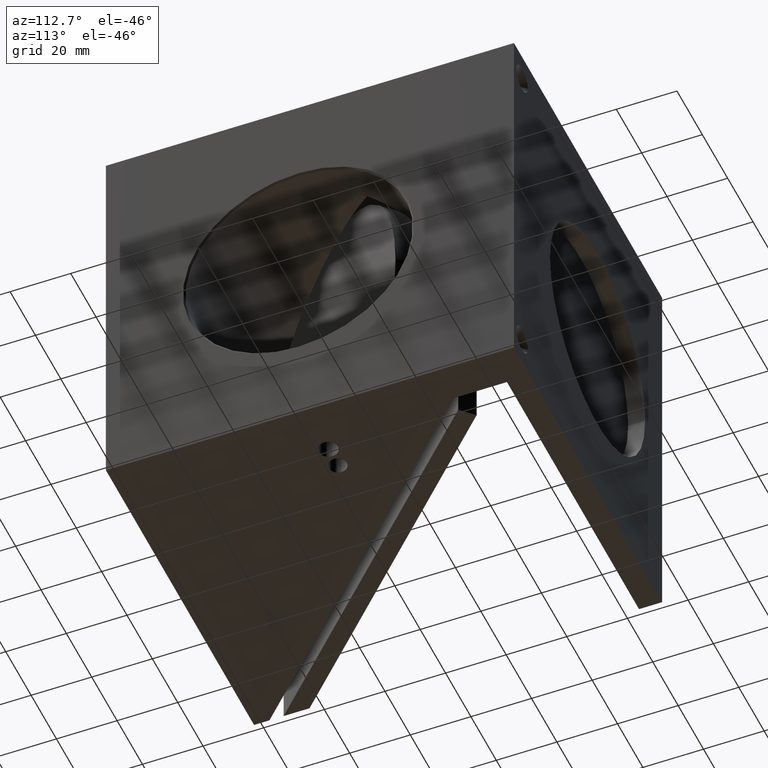
[diagram: clean part render]
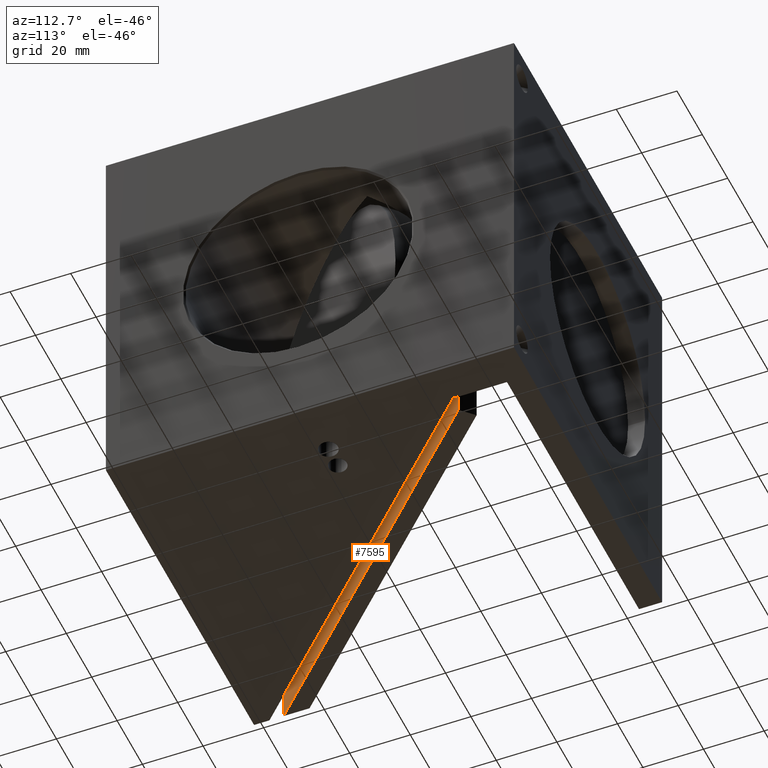
[diagram: same view with one face highlighted and labeled with its STEP entity id]
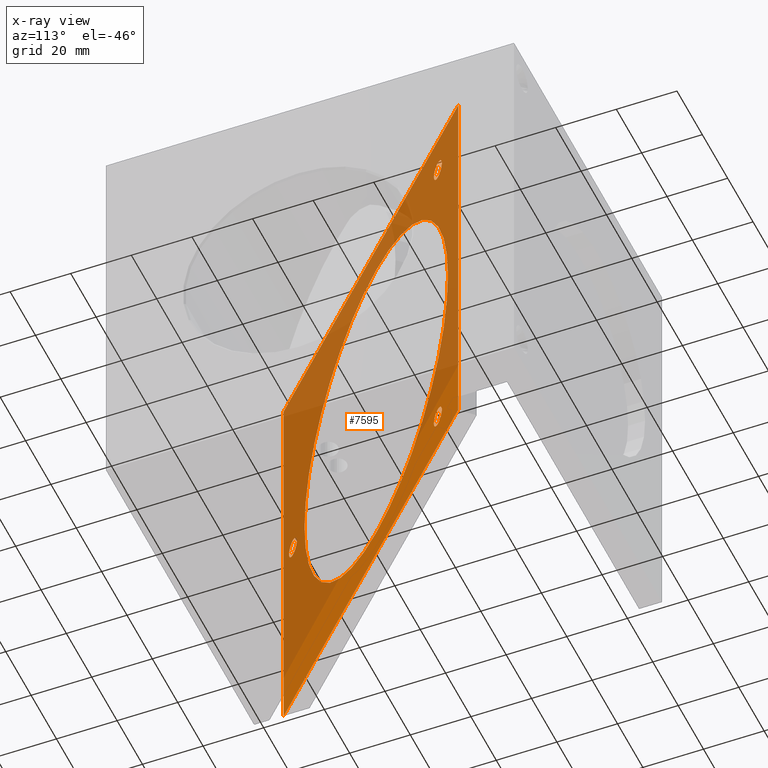
[diagram: x-ray of the same camera — body ghosted, the highlighted face saturated]
A machine part, auxiliary view. The second image highlights one B-rep face of the part: STEP entity #7595.
The next image is the same camera in x-ray: the body ghosted, the highlighted face saturated — about 74% of this face is hidden behind the body in this view.
In plain terms, the highlighted planar face has unit normal (0.7071, -0.7071, -0).
Its self-contained STEP definition (entity closure, byte-faithful):
#6214 = VERTEX_POINT ( 'NONE', #24185 ) ;
#6216 = EDGE_CURVE ( 'NONE', #6214, #6218, #24184, .T. ) ;
#6218 = VERTEX_POINT ( 'NONE', #24179 ) ;
#6273 = VERTEX_POINT ( 'NONE', #24305 ) ;
#6276 = EDGE_CURVE ( 'NONE', #6273, #6278, #24304, .T. ) ;
#6278 = VERTEX_POINT ( 'NONE', #24299 ) ;
#6302 = VERTEX_POINT ( 'NONE', #24308 ) ;
#6304 = EDGE_CURVE ( 'NONE', #6302, #6305, #24363, .T. ) ;
#6305 = VERTEX_POINT ( 'NONE', #24358 ) ;
#6325 = VERTEX_POINT ( 'NONE', #24373 ) ;
#6328 = EDGE_CURVE ( 'NONE', #6325, #6329, #24372, .T. ) ;
#6329 = VERTEX_POINT ( 'NONE', #24367 ) ;
#7496 = VERTEX_POINT ( 'NONE', #26300 ) ;
#7501 = EDGE_CURVE ( 'NONE', #7612, #7496, #26299, .T. ) ;
#7506 = EDGE_CURVE ( 'NONE', #7507, #7508, #26295, .T. ) ;
#7507 = VERTEX_POINT ( 'NONE', #26291 ) ;
#7508 = VERTEX_POINT ( 'NONE', #26351 ) ;
#7569 = ORIENTED_EDGE ( 'NONE', *, *, #7571, .F. ) ;
#7571 = EDGE_CURVE ( 'NONE', #6329, #6325, #26447, .T. ) ;
#7572 = ORIENTED_EDGE ( 'NONE', *, *, #6328, .F. ) ;
#7574 = EDGE_LOOP ( 'NONE', ( #7575, #7580 ) ) ;
#7575 = ORIENTED_EDGE ( 'NONE', *, *, #7578, .F. ) ;
#7578 = EDGE_CURVE ( 'NONE', #6305, #6302, #26442, .T. ) ;
#7580 = ORIENTED_EDGE ( 'NONE', *, *, #6304, .F. ) ;
#7582 = EDGE_LOOP ( 'NONE', ( #7583, #7586 ) ) ;
#7583 = ORIENTED_EDGE ( 'NONE', *, *, #7584, .F. ) ;
#7584 = EDGE_CURVE ( 'NONE', #6278, #6273, #26494, .T. ) ;
#7586 = ORIENTED_EDGE ( 'NONE', *, *, #6276, .F. ) ;
#7595 = ADVANCED_FACE ( 'NONE', ( #26522, #26521, #26520, #26519, #26518 ), #26501, .T. ) ;
#7597 = EDGE_LOOP ( 'NONE', ( #7598, #7600, #7601, #7602 ) ) ;
#7598 = ORIENTED_EDGE ( 'NONE', *, *, #7599, .F. ) ;
#7599 = EDGE_CURVE ( 'NONE', #7507, #7496, #26500, .T. ) ;
#7600 = ORIENTED_EDGE ( 'NONE', *, *, #7506, .T. ) ;
#7601 = ORIENTED_EDGE ( 'NONE', *, *, #7615, .T. ) ;
#7602 = ORIENTED_EDGE ( 'NONE', *, *, #7501, .T. ) ;
#7604 = EDGE_LOOP ( 'NONE', ( #7605, #7608 ) ) ;
#7605 = ORIENTED_EDGE ( 'NONE', *, *, #7607, .F. ) ;
#7607 = EDGE_CURVE ( 'NONE', #6218, #6214, #26553, .T. ) ;
#7608 = ORIENTED_EDGE ( 'NONE', *, *, #6216, .F. ) ;
#7609 = EDGE_LOOP ( 'NONE', ( #7569, #7572 ) ) ;
#7612 = VERTEX_POINT ( 'NONE', #26544 ) ;
#7615 = EDGE_CURVE ( 'NONE', #7508, #7612, #26542, .T. ) ;
#24179 = CARTESIAN_POINT ( 'NONE',  ( -0.6077082818109708100, 0.4554697870936628700, 2.749500000000000300 ) ) ;
#24180 = DIRECTION ( 'NONE',  ( 0.0000000000000000000, 0.0000000000000000000, 1.000000000000000000 ) ) ;
#24181 = DIRECTION ( 'NONE',  ( 0.7071067811865490200, -0.7071067811865461300, 7.582389110198108000E-017 ) ) ;
#24182 = CARTESIAN_POINT ( 'NONE',  ( -0.6077082818109707000, 0.4554697870936629800, 2.625000000000000400 ) ) ;
#24183 = AXIS2_PLACEMENT_3D ( 'NONE', #24182, #24181, #24180 ) ;
#24184 = CIRCLE ( 'NONE', #24183, 0.1244999999999997200 ) ;
#24185 = CARTESIAN_POINT ( 'NONE',  ( -0.6077082818109708100, 0.4554697870936628700, 2.500500000000000600 ) ) ;
#24299 = CARTESIAN_POINT ( 'NONE',  ( 1.251459659215662800, 2.314637728120305700, 4.889499999999999100 ) ) ;
#24300 = DIRECTION ( 'NONE',  ( 1.206380213585455200E-016, 1.206380213585455200E-016, 1.000000000000000000 ) ) ;
#24301 = DIRECTION ( 'NONE',  ( 0.7071067811865490200, -0.7071067811865461300, 7.582389110198108000E-017 ) ) ;
#24302 = CARTESIAN_POINT ( 'NONE',  ( 1.251459659215662800, 2.314637728120305200, 2.624999999999999600 ) ) ;
#24303 = AXIS2_PLACEMENT_3D ( 'NONE', #24302, #24301, #24300 ) ;
#24304 = CIRCLE ( 'NONE', #24303, 2.264500000000000000 ) ;
#24305 = CARTESIAN_POINT ( 'NONE',  ( 1.251459659215662200, 2.314637728120304300, 0.3604999999999996000 ) ) ;
#24308 = CARTESIAN_POINT ( 'NONE',  ( 2.627305242117476100, 3.690483311022126700, 0.3754999999999994500 ) ) ;
#24358 = CARTESIAN_POINT ( 'NONE',  ( 2.627305242117476100, 3.690483311022126700, 0.6244999999999991700 ) ) ;
#24359 = DIRECTION ( 'NONE',  ( 0.0000000000000000000, 0.0000000000000000000, 1.000000000000000000 ) ) ;
#24360 = DIRECTION ( 'NONE',  ( 0.7071067811865490200, -0.7071067811865461300, 7.582389110198108000E-017 ) ) ;
#24361 = CARTESIAN_POINT ( 'NONE',  ( 2.627305242117476100, 3.690483311022126700, 0.4999999999999993300 ) ) ;
#24362 = AXIS2_PLACEMENT_3D ( 'NONE', #24361, #24360, #24359 ) ;
#24363 = CIRCLE ( 'NONE', #24362, 0.1244999999999998600 ) ;
#24367 = CARTESIAN_POINT ( 'NONE',  ( 2.627305242117477800, 3.690483311022126700, 4.874499999999999400 ) ) ;
#24368 = DIRECTION ( 'NONE',  ( 0.0000000000000000000, 0.0000000000000000000, 1.000000000000000000 ) ) ;
#24369 = DIRECTION ( 'NONE',  ( 0.7071067811865490200, -0.7071067811865461300, 7.582389110198108000E-017 ) ) ;
#24370 = CARTESIAN_POINT ( 'NONE',  ( 2.627305242117477800, 3.690483311022126700, 4.749999999999999100 ) ) ;
#24371 = AXIS2_PLACEMENT_3D ( 'NONE', #24370, #24369, #24368 ) ;
#24372 = CIRCLE ( 'NONE', #24371, 0.1244999999999997200 ) ;
#24373 = CARTESIAN_POINT ( 'NONE',  ( 2.627305242117477800, 3.690483311022126700, 4.625499999999999700 ) ) ;
#26291 = CARTESIAN_POINT ( 'NONE',  ( -0.8165416096220781100, 0.2466364592825541800, 5.463695987328526400E-016 ) ) ;
#26292 = DIRECTION ( 'NONE',  ( 0.7071067811865458000, 0.7071067811865493500, -5.967389539223752300E-017 ) ) ;
#26293 = VECTOR ( 'NONE', #26292, 39.37007874015748100 ) ;
#26294 = CARTESIAN_POINT ( 'NONE',  ( -0.8822912799745500400, 0.1808867889300820600, 0.0000000000000000000 ) ) ;
#26295 = LINE ( 'NONE', #26294, #26293 ) ;
#26296 = DIRECTION ( 'NONE',  ( -0.7071067811865458000, -0.7071067811865493500, -3.777029913832295300E-017 ) ) ;
#26297 = VECTOR ( 'NONE', #26296, 39.37007874015748100 ) ;
#26298 = CARTESIAN_POINT ( 'NONE',  ( -0.8822912799745491500, 0.1808867889300825900, 5.250000000000000000 ) ) ;
#26299 = LINE ( 'NONE', #26298, #26297 ) ;
#26300 = CARTESIAN_POINT ( 'NONE',  ( -0.8165416096220775600, 0.2466364592825547300, 5.250000000000000000 ) ) ;
#26351 = CARTESIAN_POINT ( 'NONE',  ( 3.082456442138413500, 4.145634511043065900, -5.463695987328526400E-016 ) ) ;
#26438 = DIRECTION ( 'NONE',  ( 0.0000000000000000000, 0.0000000000000000000, 1.000000000000000000 ) ) ;
#26439 = DIRECTION ( 'NONE',  ( 0.7071067811865490200, -0.7071067811865461300, 7.582389110198108000E-017 ) ) ;
#26440 = CARTESIAN_POINT ( 'NONE',  ( 2.627305242117476100, 3.690483311022126700, 0.4999999999999993300 ) ) ;
#26441 = AXIS2_PLACEMENT_3D ( 'NONE', #26440, #26439, #26438 ) ;
#26442 = CIRCLE ( 'NONE', #26441, 0.1244999999999998600 ) ;
#26443 = DIRECTION ( 'NONE',  ( 0.0000000000000000000, 0.0000000000000000000, 1.000000000000000000 ) ) ;
#26444 = DIRECTION ( 'NONE',  ( 0.7071067811865490200, -0.7071067811865461300, 7.582389110198108000E-017 ) ) ;
#26445 = CARTESIAN_POINT ( 'NONE',  ( 2.627305242117477800, 3.690483311022126700, 4.749999999999999100 ) ) ;
#26446 = AXIS2_PLACEMENT_3D ( 'NONE', #26445, #26444, #26443 ) ;
#26447 = CIRCLE ( 'NONE', #26446, 0.1244999999999997200 ) ;
#26490 = DIRECTION ( 'NONE',  ( 1.206380213585455200E-016, 1.206380213585455200E-016, 1.000000000000000000 ) ) ;
#26491 = DIRECTION ( 'NONE',  ( 0.7071067811865490200, -0.7071067811865461300, 7.582389110198108000E-017 ) ) ;
#26492 = CARTESIAN_POINT ( 'NONE',  ( 1.251459659215662800, 2.314637728120305200, 2.624999999999999600 ) ) ;
#26493 = AXIS2_PLACEMENT_3D ( 'NONE', #26492, #26491, #26490 ) ;
#26494 = CIRCLE ( 'NONE', #26493, 2.264500000000000000 ) ;
#26496 = DIRECTION ( 'NONE',  ( 1.779685125907974000E-016, 8.417602649094873300E-017, 1.000000000000000000 ) ) ;
#26497 = DIRECTION ( 'NONE',  ( 0.7071067811865490200, -0.7071067811865461300, -6.632130294554837900E-017 ) ) ;
#26498 = CARTESIAN_POINT ( 'NONE',  ( 3.082456442138413500, 4.145634511043065900, -5.463695987328526400E-016 ) ) ;
#26499 = AXIS2_PLACEMENT_3D ( 'NONE', #26498, #26497, #26496 ) ;
#26500 = LINE ( 'NONE', #26556, #26555 ) ;
#26501 = PLANE ( 'NONE',  #26499 ) ;
#26518 = FACE_BOUND ( 'NONE', #7582, .T. ) ;
#26519 = FACE_BOUND ( 'NONE', #7574, .T. ) ;
#26520 = FACE_BOUND ( 'NONE', #7609, .T. ) ;
#26521 = FACE_BOUND ( 'NONE', #7604, .T. ) ;
#26522 = FACE_OUTER_BOUND ( 'NONE', #7597, .T. ) ;
#26539 = DIRECTION ( 'NONE',  ( 1.779685125907974000E-016, 8.417602649094873300E-017, 1.000000000000000000 ) ) ;
#26540 = VECTOR ( 'NONE', #26539, 39.37007874015748100 ) ;
#26541 = CARTESIAN_POINT ( 'NONE',  ( 3.082456442138413500, 4.145634511043065900, -5.463695987328526400E-016 ) ) ;
#26542 = LINE ( 'NONE', #26541, #26540 ) ;
#26544 = CARTESIAN_POINT ( 'NONE',  ( 3.082456442138413500, 4.145634511043066800, 5.250000000000000000 ) ) ;
#26549 = DIRECTION ( 'NONE',  ( 0.0000000000000000000, 0.0000000000000000000, 1.000000000000000000 ) ) ;
#26550 = DIRECTION ( 'NONE',  ( 0.7071067811865490200, -0.7071067811865461300, 7.582389110198108000E-017 ) ) ;
#26551 = CARTESIAN_POINT ( 'NONE',  ( -0.6077082818109707000, 0.4554697870936629800, 2.625000000000000400 ) ) ;
#26552 = AXIS2_PLACEMENT_3D ( 'NONE', #26551, #26550, #26549 ) ;
#26553 = CIRCLE ( 'NONE', #26552, 0.1244999999999997200 ) ;
#26554 = DIRECTION ( 'NONE',  ( 1.090650618509771600E-016, 1.527257575112813900E-017, 1.000000000000000000 ) ) ;
#26555 = VECTOR ( 'NONE', #26554, 39.37007874015748100 ) ;
#26556 = CARTESIAN_POINT ( 'NONE',  ( -0.8165416096220781100, 0.2466364592825541800, 5.463695987328526400E-016 ) ) ;